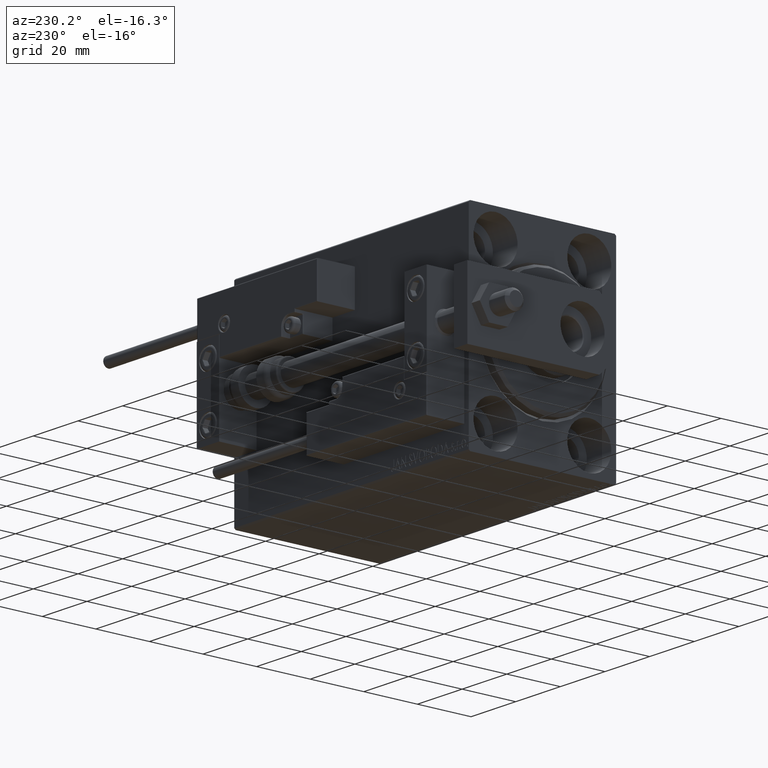
[diagram: clean part render]
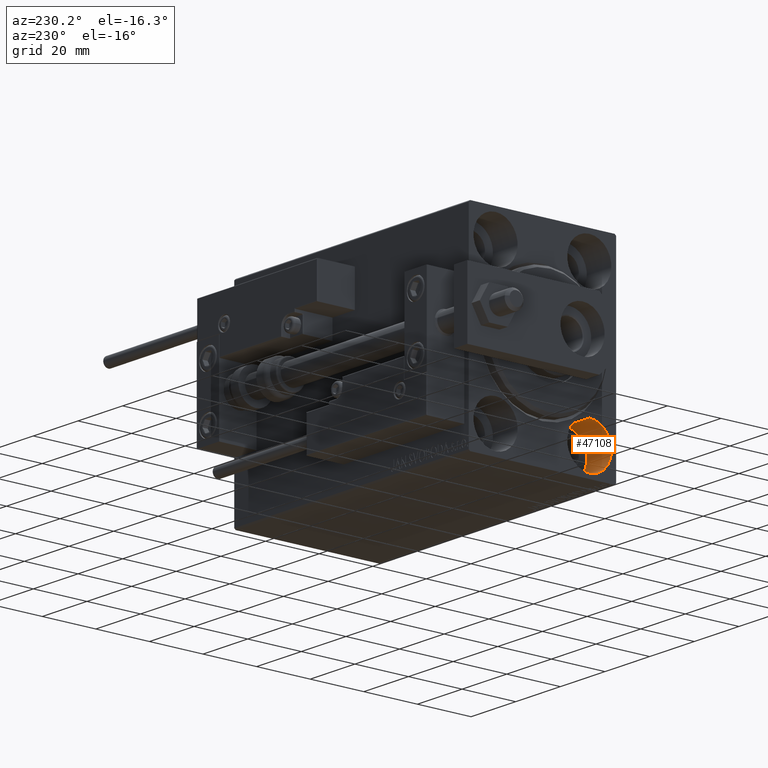
[diagram: same view with one face highlighted and labeled with its STEP entity id]
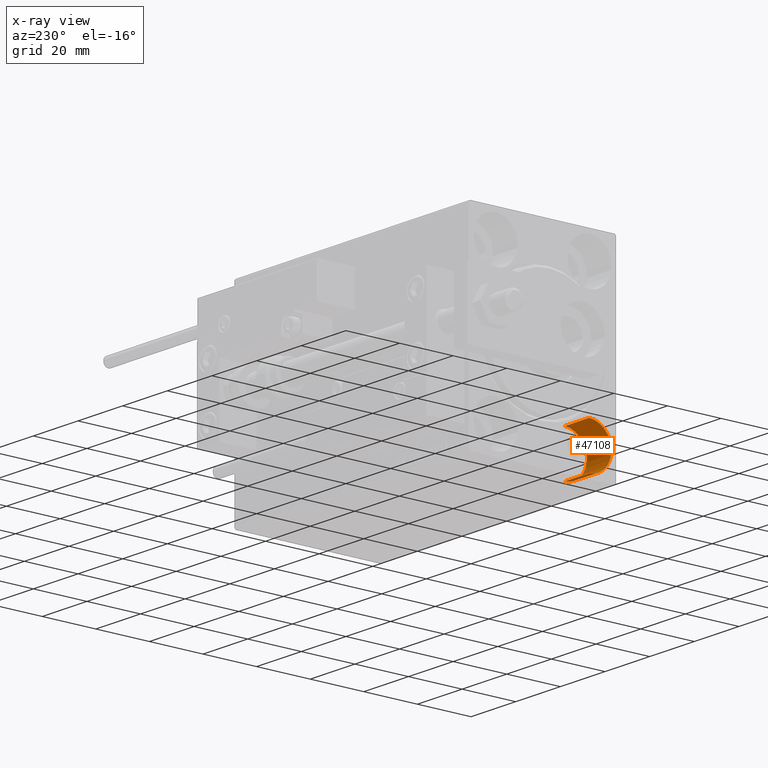
[diagram: x-ray of the same camera — body ghosted, the highlighted face saturated]
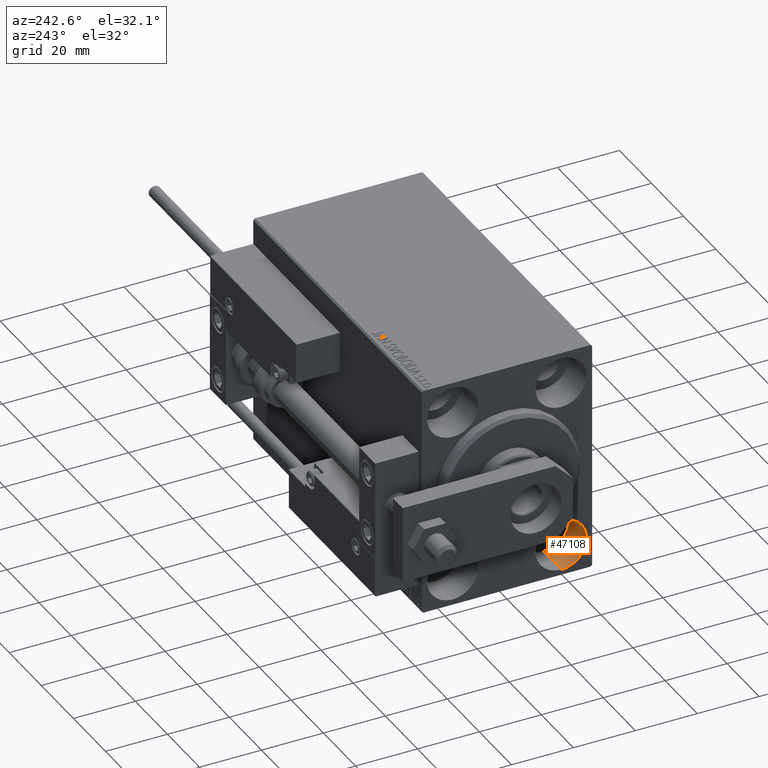
[diagram: same view with one face highlighted and labeled with its STEP entity id]
A machine part, auxiliary view. The second image highlights one B-rep face of the part: STEP entity #47108.
The next image is the same camera in x-ray: the body ghosted, the highlighted face saturated — about 0% of this face is hidden behind the body in this view.
A second angle (auxiliary view) of the same face is appended — the face is thin or edge-on in the first view.
In plain terms, the highlighted cylindrical surface (edge-blend (fillet) strip) has radius 8.25 mm, axis along (-1, -0, -0).
Its self-contained STEP definition (entity closure, byte-faithful):
#1394 = EDGE_CURVE ( 'NONE', #3396, #8191, #24331, .T. ) ;
#1935 = CARTESIAN_POINT ( 'NONE',  ( 11.00000000000000000, -17.50000000000000355, -35.75000000000000711 ) ) ;
#3396 = VERTEX_POINT ( 'NONE', #1935 ) ;
#4000 = EDGE_LOOP ( 'NONE', ( #32217, #25518, #49040, #14662 ) ) ;
#4355 = AXIS2_PLACEMENT_3D ( 'NONE', #23315, #41997, #38698 ) ;
#5544 = LINE ( 'NONE', #29005, #15562 ) ;
#8191 = VERTEX_POINT ( 'NONE', #16183 ) ;
#8351 = CARTESIAN_POINT ( 'NONE',  ( 11.00000000000000000, -17.50000000000000355, -19.25000000000000355 ) ) ;
#8550 = CYLINDRICAL_SURFACE ( 'NONE', #8965, 8.250000000000000000 ) ;
#8965 = AXIS2_PLACEMENT_3D ( 'NONE', #23929, #43368, #35541 ) ;
#9690 = DIRECTION ( 'NONE',  ( -1.000000000000000000, -0.000000000000000000, -0.000000000000000000 ) ) ;
#9834 = DIRECTION ( 'NONE',  ( -1.000000000000000000, -0.000000000000000000, -0.000000000000000000 ) ) ;
#11597 = CIRCLE ( 'NONE', #4355, 8.250000000000000000 ) ;
#12478 = CIRCLE ( 'NONE', #21439, 8.250000000000000000 ) ;
#14662 = ORIENTED_EDGE ( 'NONE', *, *, #16607, .F. ) ;
#15562 = VECTOR ( 'NONE', #9834, 1000.000000000000000 ) ;
#16183 = CARTESIAN_POINT ( 'NONE',  ( 0.000000000000000000, -17.50000000000000355, -35.75000000000000711 ) ) ;
#16607 = EDGE_CURVE ( 'NONE', #21096, #40976, #5544, .T. ) ;
#17275 = DIRECTION ( 'NONE',  ( 0.000000000000000000, 0.000000000000000000, 1.000000000000000000 ) ) ;
#18442 = EDGE_CURVE ( 'NONE', #8191, #40976, #11597, .T. ) ;
#21096 = VERTEX_POINT ( 'NONE', #8351 ) ;
#21439 = AXIS2_PLACEMENT_3D ( 'NONE', #35699, #47588, #17275 ) ;
#23315 = CARTESIAN_POINT ( 'NONE',  ( 0.000000000000000000, -17.50000000000000355, -27.50000000000000355 ) ) ;
#23929 = CARTESIAN_POINT ( 'NONE',  ( 11.00000000000000000, -17.50000000000000355, -27.50000000000000355 ) ) ;
#24331 = LINE ( 'NONE', #31917, #24860 ) ;
#24860 = VECTOR ( 'NONE', #9690, 1000.000000000000000 ) ;
#25518 = ORIENTED_EDGE ( 'NONE', *, *, #1394, .T. ) ;
#25766 = CARTESIAN_POINT ( 'NONE',  ( 0.000000000000000000, -17.50000000000000355, -19.25000000000000355 ) ) ;
#27939 = EDGE_CURVE ( 'NONE', #3396, #21096, #12478, .T. ) ;
#29005 = CARTESIAN_POINT ( 'NONE',  ( 11.00000000000000000, -17.50000000000000355, -19.25000000000000355 ) ) ;
#31917 = CARTESIAN_POINT ( 'NONE',  ( 11.00000000000000000, -17.50000000000000355, -35.75000000000000711 ) ) ;
#32217 = ORIENTED_EDGE ( 'NONE', *, *, #27939, .F. ) ;
#35541 = DIRECTION ( 'NONE',  ( 0.000000000000000000, 0.000000000000000000, 1.000000000000000000 ) ) ;
#35699 = CARTESIAN_POINT ( 'NONE',  ( 11.00000000000000000, -17.50000000000000355, -27.50000000000000355 ) ) ;
#38698 = DIRECTION ( 'NONE',  ( 0.000000000000000000, 0.000000000000000000, 1.000000000000000000 ) ) ;
#39822 = FACE_OUTER_BOUND ( 'NONE', #4000, .T. ) ;
#40976 = VERTEX_POINT ( 'NONE', #25766 ) ;
#41997 = DIRECTION ( 'NONE',  ( -1.000000000000000000, 0.000000000000000000, 0.000000000000000000 ) ) ;
#43368 = DIRECTION ( 'NONE',  ( -1.000000000000000000, -0.000000000000000000, -0.000000000000000000 ) ) ;
#47108 = ADVANCED_FACE ( 'NONE', ( #39822 ), #8550, .F. ) ;
#47588 = DIRECTION ( 'NONE',  ( -1.000000000000000000, 0.000000000000000000, 0.000000000000000000 ) ) ;
#49040 = ORIENTED_EDGE ( 'NONE', *, *, #18442, .T. ) ;